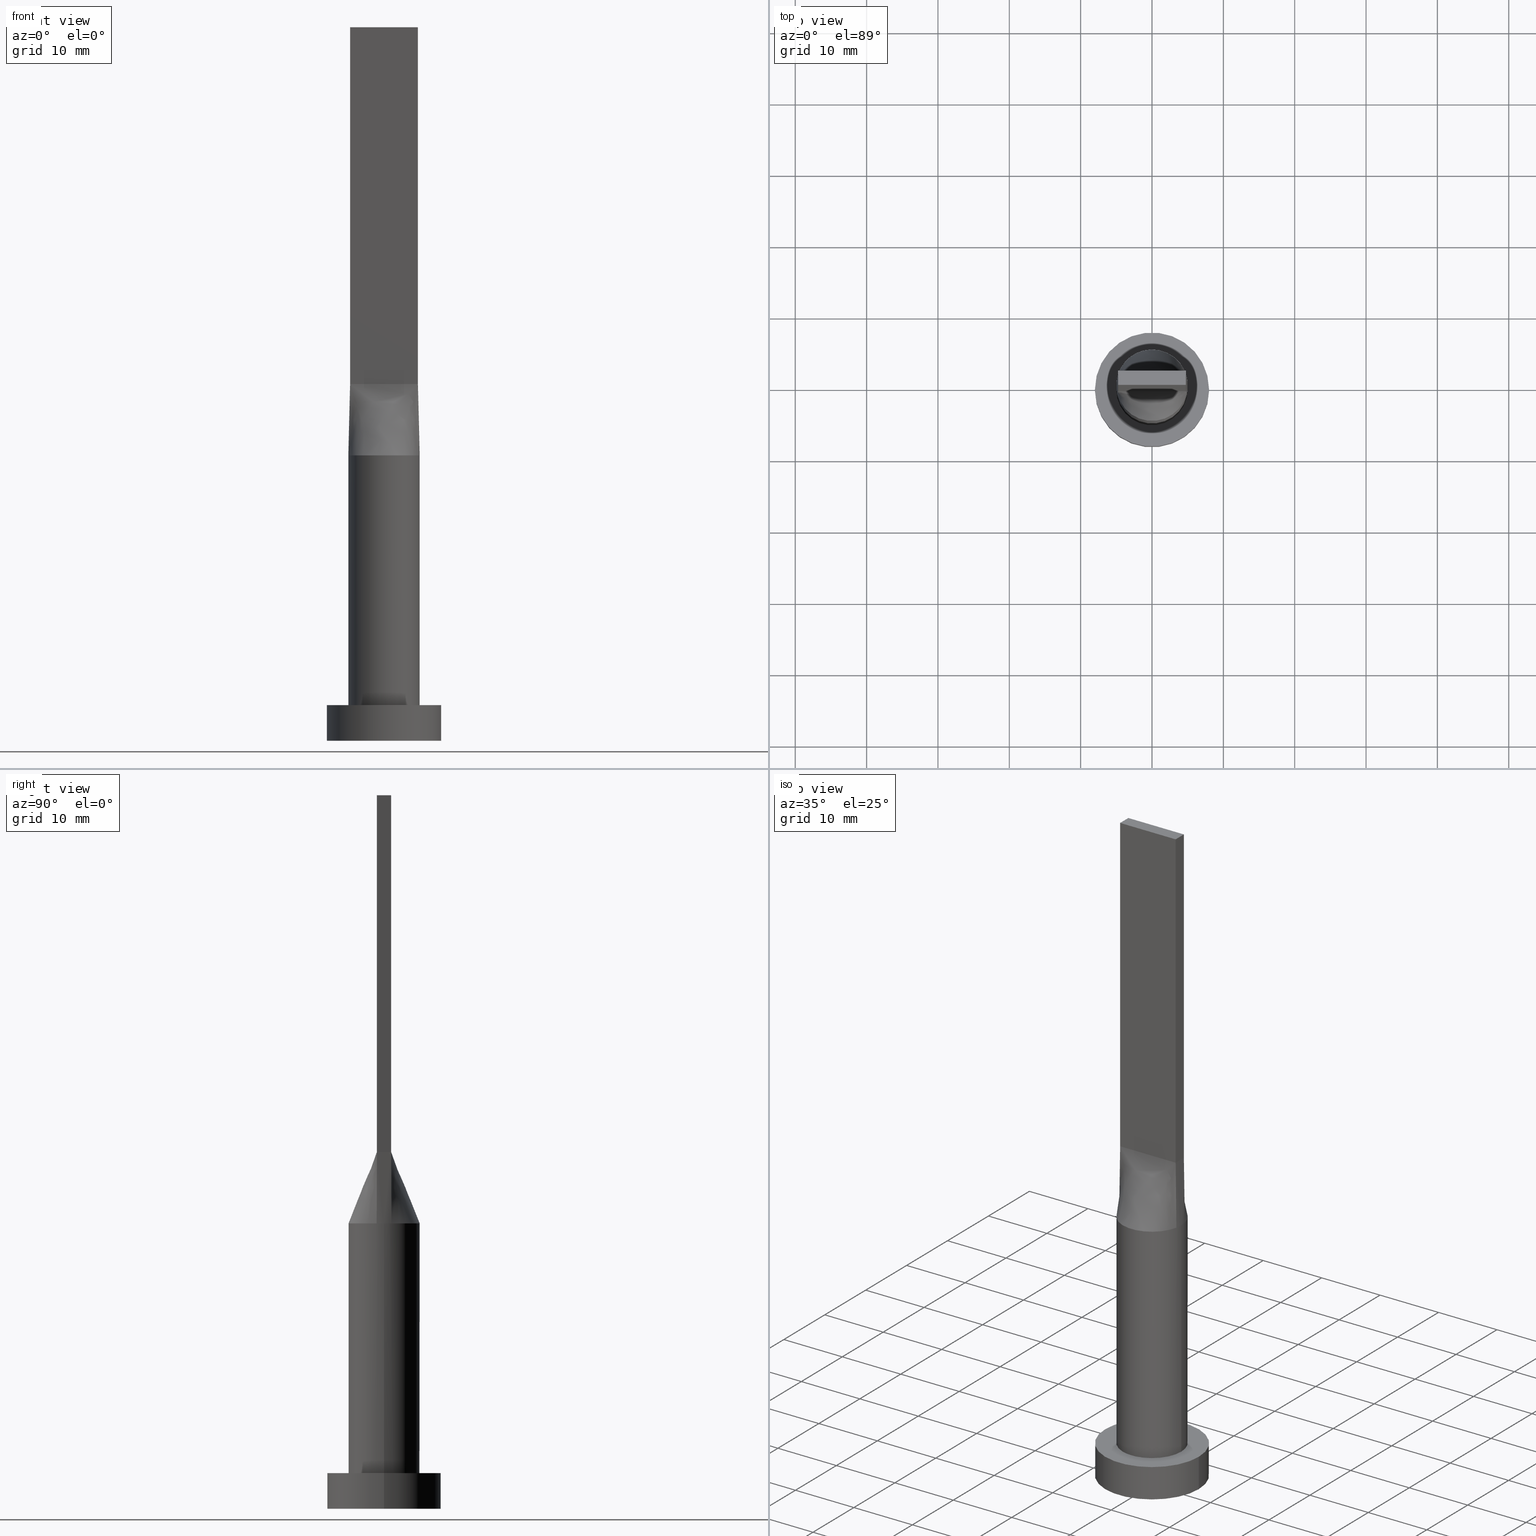
[diagram: canonical four-view strip — front | top / right | iso, engineering-drawing reading convention]
A machine part, canonical four-view strip (front | top / right | iso — engineering-drawing reading convention). The complete STEP part file that produces these views, byte-faithful:
ISO-10303-21;
HEADER;
FILE_DESCRIPTION (( 'STEP AP203' ),
    '1' );
FILE_NAME ('58a7.STEP',
    '2023-02-13T09:34:15',
    ( '' ),
    ( '' ),
    'SwSTEP 2.0',
    'SolidWorks 2019',
    '' );
FILE_SCHEMA (( 'CONFIG_CONTROL_DESIGN' ));
ENDSEC;

DATA;
#1 = CARTESIAN_POINT ( 'NONE',  ( -5.000000000000000888, -2.735102206719564433E-16, 40.00000000000000711 ) ) ;
#2 = CARTESIAN_POINT ( 'NONE',  ( 8.000000000000000000, 9.797174393178825657E-16, 5.000000000000000000 ) ) ;
#3 = CARTESIAN_POINT ( 'NONE',  ( 0.000000000000000000, 0.000000000000000000, 0.000000000000000000 ) ) ;
#4 = CARTESIAN_POINT ( 'NONE',  ( -0.7916666666666558605, -0.9999999999999991118, 50.00000000000000000 ) ) ;
#5 = EDGE_CURVE ( 'NONE', #92, #263, #191, .T. ) ;
#6 = CARTESIAN_POINT ( 'NONE',  ( -4.892748924933745691, 1.030052405249209269, 40.00000000000000000 ) ) ;
#7 = PERSON_AND_ORGANIZATION ( #209, #543 ) ;
#8 = CARTESIAN_POINT ( 'NONE',  ( 4.892748924933744803, -1.030052405249212155, 40.00000000000000000 ) ) ;
#9 = ORIENTED_EDGE ( 'NONE', *, *, #507, .T. ) ;
#10 = CARTESIAN_POINT ( 'NONE',  ( 4.214142381859630859, 2.735777372109855943, 40.00000000000000000 ) ) ;
#11 = ORIENTED_EDGE ( 'NONE', *, *, #529, .T. ) ;
#12 = CARTESIAN_POINT ( 'NONE',  ( -4.214142381859630859, 2.735777372109856387, 40.00000000000000000 ) ) ;
#13 = CARTESIAN_POINT ( 'NONE',  ( 0.9895833333333431403, -0.9999999999999995559, 50.00000000000000711 ) ) ;
#14 = PERSON_AND_ORGANIZATION ( #209, #543 ) ;
#15 = DIRECTION ( 'NONE',  ( 0.000000000000000000, -1.000000000000000000, 0.000000000000000000 ) ) ;
#16 = DIRECTION ( 'NONE',  ( 0.000000000000000000, 0.000000000000000000, 1.000000000000000000 ) ) ;
#17 = ORIENTED_EDGE ( 'NONE', *, *, #210, .F. ) ;
#18 = APPROVAL_ROLE ( '' ) ;
#19 = VECTOR ( 'NONE', #363, 1000.000000000000000 ) ;
#20 = CARTESIAN_POINT ( 'NONE',  ( -4.750000000000000000, 1.000000000000000000, 50.00000000000000000 ) ) ;
#21 = ORIENTED_EDGE ( 'NONE', *, *, #260, .F. ) ;
#22 = ORIENTED_EDGE ( 'NONE', *, *, #176, .F. ) ;
#23 = ORIENTED_EDGE ( 'NONE', *, *, #450, .T. ) ;
#24 = VECTOR ( 'NONE', #83, 1000.000000000000000 ) ;
#25 = CC_DESIGN_APPROVAL ( #347, ( #254 ) ) ;
#26 = VERTEX_POINT ( 'NONE', #459 ) ;
#27 = CC_DESIGN_DATE_AND_TIME_ASSIGNMENT ( #192, #535, ( #571 ) ) ;
#28 = DIRECTION ( 'NONE',  ( 1.000000000000000000, 0.000000000000000000, 0.000000000000000000 ) ) ;
#29 = CARTESIAN_POINT ( 'NONE',  ( 3.958333333333332149, 1.000000000000000000, 50.00000000000000711 ) ) ;
#30 = AXIS2_PLACEMENT_3D ( 'NONE', #352, #540, #230 ) ;
#31 = APPLICATION_CONTEXT ( 'configuration controlled 3d designs of mechanical parts and assemblies' ) ;
#32 = EDGE_CURVE ( 'NONE', #26, #68, #359, .T. ) ;
#33 = CARTESIAN_POINT ( 'NONE',  ( 4.750000000000000000, -0.9999999999999997780, 100.0000000000000000 ) ) ;
#34 = CARTESIAN_POINT ( 'NONE',  ( 0.000000000000000000, 0.000000000000000000, 5.000000000000000000 ) ) ;
#35 = LINE ( 'NONE', #219, #55 ) ;
#36 = ADVANCED_BREP_SHAPE_REPRESENTATION ( '58a7', ( #74, #443 ), #357 ) ;
#37 = DATE_AND_TIME ( #134, #43 ) ;
#38 = CARTESIAN_POINT ( 'NONE',  ( -4.214142381859630859, 2.735777372109856387, 40.00000000000000000 ) ) ;
#39 = CARTESIAN_POINT ( 'NONE',  ( -2.770833333333325488, -0.9999999999999991118, 50.00000000000000000 ) ) ;
#40 = DIRECTION ( 'NONE',  ( 0.000000000000000000, 0.000000000000000000, 1.000000000000000000 ) ) ;
#41 = LINE ( 'NONE', #327, #19 ) ;
#42 = AXIS2_PLACEMENT_3D ( 'NONE', #114, #334, #288 ) ;
#43 = LOCAL_TIME ( 10, 34, 15.00000000000000000, #416 ) ;
#44 = DIRECTION ( 'NONE',  ( 0.000000000000000000, 0.000000000000000000, 1.000000000000000000 ) ) ;
#45 = ORIENTED_EDGE ( 'NONE', *, *, #82, .T. ) ;
#46 = EDGE_CURVE ( 'NONE', #26, #179, #275, .T. ) ;
#47 = DIRECTION ( 'NONE',  ( 0.000000000000000000, 0.000000000000000000, 1.000000000000000000 ) ) ;
#48 = CARTESIAN_POINT ( 'NONE',  ( 4.750000000000000000, -0.6666666666666664076, 50.00000000000000000 ) ) ;
#49 = ORIENTED_EDGE ( 'NONE', *, *, #90, .T. ) ;
#50 = CARTESIAN_POINT ( 'NONE',  ( -4.892747712986291297, 1.030052143680498133, 40.00000000000000000 ) ) ;
#51 = CARTESIAN_POINT ( 'NONE',  ( -4.963482788771056420, 0.6940665520219767570, 39.99999999999999289 ) ) ;
#52 = CARTESIAN_POINT ( 'NONE',  ( -2.546422404201597711, 4.351724242187074765, 40.00000000000002132 ) ) ;
#53 = CARTESIAN_POINT ( 'NONE',  ( -3.166666666666660301, -0.9999999999999991118, 50.00000000000000711 ) ) ;
#54 = ORIENTED_EDGE ( 'NONE', *, *, #82, .F. ) ;
#55 = VECTOR ( 'NONE', #546, 1000.000000000000227 ) ;
#56 = PLANE ( 'NONE',  #131 ) ;
#57 = CARTESIAN_POINT ( 'NONE',  ( -3.900093280396789819, 3.182195704254724422, 40.00000000000000711 ) ) ;
#58 = APPROVAL_STATUS ( 'not_yet_approved' ) ;
#59 = LINE ( 'NONE', #482, #440 ) ;
#60 = EDGE_LOOP ( 'NONE', ( #150, #430, #66, #21 ) ) ;
#61 = CARTESIAN_POINT ( 'NONE',  ( -4.892752739180945554, -1.030053203145257168, 40.00000000000000000 ) ) ;
#62 = CARTESIAN_POINT ( 'NONE',  ( 3.958333333333337922, -0.9999999999999995559, 50.00000000000001421 ) ) ;
#63 = AXIS2_PLACEMENT_3D ( 'NONE', #525, #149, #242 ) ;
#64 = VERTEX_POINT ( 'NONE', #170 ) ;
#65 = EDGE_CURVE ( 'NONE', #201, #563, #455, .T. ) ;
#66 = ORIENTED_EDGE ( 'NONE', *, *, #65, .F. ) ;
#67 = CARTESIAN_POINT ( 'NONE',  ( 1.649264041307592965, -4.731318088779740805, 40.00000000000001421 ) ) ;
#68 = VERTEX_POINT ( 'NONE', #457 ) ;
#69 = DIRECTION ( 'NONE',  ( -1.000000000000000000, 6.847592668329501559E-17, 0.000000000000000000 ) ) ;
#70 = EDGE_LOOP ( 'NONE', ( #481, #116, #121, #204, #247 ) ) ;
#71 = CIRCLE ( 'NONE', #63, 5.000000000000000000 ) ;
#72 = ADVANCED_FACE ( 'NONE', ( #132 ), #269, .T. ) ;
#73 = LOCAL_TIME ( 10, 34, 15.00000000000000000, #386 ) ;
#74 = MANIFOLD_SOLID_BREP ( 'P�idat vysunut�m5', #180 ) ;
#75 = CARTESIAN_POINT ( 'NONE',  ( 3.900093280396791151, 3.182195704254724422, 40.00000000000000711 ) ) ;
#76 = LINE ( 'NONE', #215, #118 ) ;
#77 = DIRECTION ( 'NONE',  ( -0.000000000000000000, -0.000000000000000000, -1.000000000000000000 ) ) ;
#78 = VERTEX_POINT ( 'NONE', #181 ) ;
#79 = B_SPLINE_SURFACE_WITH_KNOTS ( 'NONE', 3, 1, ( 
 ( #8, #182 ),
 ( #471, #48 ),
 ( #189, #373 ),
 ( #228, #562 ),
 ( #412, #141 ),
 ( #417, #333 ) ),
 .UNSPECIFIED., .F., .F., .F.,
 ( 4, 2, 4 ),
 ( 2, 2 ),
 ( 0.000000000000000000, 0.5000000000000000000, 1.000000000000000000 ),
 ( 0.000000000000000000, 1.000000000000000000 ),
 .UNSPECIFIED. ) ;
#80 = VERTEX_POINT ( 'NONE', #1 ) ;
#81 = DIRECTION ( 'NONE',  ( 0.000000000000000000, 0.000000000000000000, 1.000000000000000000 ) ) ;
#82 = EDGE_CURVE ( 'NONE', #68, #196, #411, .T. ) ;
#83 = DIRECTION ( 'NONE',  ( -1.000000000000000000, -0.000000000000000000, -0.000000000000000000 ) ) ;
#84 = AXIS2_PLACEMENT_3D ( 'NONE', #318, #218, #28 ) ;
#85 = DIRECTION ( 'NONE',  ( -0.000000000000000000, -0.000000000000000000, -1.000000000000000000 ) ) ;
#86 = CARTESIAN_POINT ( 'NONE',  ( 0.000000000000000000, 0.000000000000000000, 40.00000000000000000 ) ) ;
#87 = CARTESIAN_POINT ( 'NONE',  ( -4.750000000000000000, 1.000000000000000000, 50.00000000000000000 ) ) ;
#88 = CARTESIAN_POINT ( 'NONE',  ( -8.000000000000000000, 0.000000000000000000, 5.000000000000000000 ) ) ;
#89 = CARTESIAN_POINT ( 'NONE',  ( 1.331739278681919991, 4.830988864699814478, 40.00000000000000000 ) ) ;
#90 = EDGE_CURVE ( 'NONE', #563, #446, #99, .T. ) ;
#91 = CARTESIAN_POINT ( 'NONE',  ( -1.331739278681922656, -4.830988864699811813, 39.99999999999999289 ) ) ;
#92 = VERTEX_POINT ( 'NONE', #88 ) ;
#93 = AXIS2_PLACEMENT_3D ( 'NONE', #184, #326, #372 ) ;
#94 = APPROVAL_PERSON_ORGANIZATION ( #437, #503, #18 ) ;
#95 = SECURITY_CLASSIFICATION_LEVEL ( 'unclassified' ) ;
#96 = CARTESIAN_POINT ( 'NONE',  ( 0.3380808736611315979, 4.999999999999999112, 40.00000000000000000 ) ) ;
#97 = MECHANICAL_CONTEXT ( 'NONE', #31, 'mechanical' ) ;
#98 = COORDINATED_UNIVERSAL_TIME_OFFSET ( 1, 0, .AHEAD. ) ;
#99 = LINE ( 'NONE', #229, #395 ) ;
#100 = CARTESIAN_POINT ( 'NONE',  ( -4.750000000000000000, -0.9999999999999991118, 50.00000000000000000 ) ) ;
#101 = ORIENTED_EDGE ( 'NONE', *, *, #223, .T. ) ;
#102 = ADVANCED_FACE ( 'NONE', ( #368 ), #188, .T. ) ;
#103 = CARTESIAN_POINT ( 'NONE',  ( -5.000000000000000000, -0.3470731991229979996, 40.00000000000000000 ) ) ;
#104 = CARTESIAN_POINT ( 'NONE',  ( -1.979166666666670737, 1.000000000000000000, 50.00000000000001421 ) ) ;
#105 = AXIS2_PLACEMENT_3D ( 'NONE', #34, #221, #594 ) ;
#106 = DIRECTION ( 'NONE',  ( 0.000000000000000000, 0.000000000000000000, 1.000000000000000000 ) ) ;
#107 = FACE_OUTER_BOUND ( 'NONE', #164, .T. ) ;
#108 = DIRECTION ( 'NONE',  ( 0.01427337385845012935, -0.003004920812305249440, 0.9998936149659165551 ) ) ;
#109 = ORIENTED_EDGE ( 'NONE', *, *, #544, .F. ) ;
#110 = DIRECTION ( 'NONE',  ( 6.847592668329501559E-17, 1.000000000000000000, -0.000000000000000000 ) ) ;
#111 = CARTESIAN_POINT ( 'NONE',  ( -4.750000000000000000, -0.3333333333333323711, 50.00000000000000000 ) ) ;
#112 = ORIENTED_EDGE ( 'NONE', *, *, #507, .F. ) ;
#113 = CARTESIAN_POINT ( 'NONE',  ( 4.750000000000000000, 1.000000000000000000, 50.00000000000000000 ) ) ;
#114 = CARTESIAN_POINT ( 'NONE',  ( 0.000000000000000000, 0.000000000000000000, 40.00000000000000000 ) ) ;
#115 = CARTESIAN_POINT ( 'NONE',  ( -4.750000000000000000, -0.9999999999999991118, 100.0000000000000000 ) ) ;
#116 = ORIENTED_EDGE ( 'NONE', *, *, #390, .T. ) ;
#117 = EDGE_CURVE ( 'NONE', #446, #558, #513, .T. ) ;
#118 = VECTOR ( 'NONE', #262, 1000.000000000000000 ) ;
#119 = ORIENTED_EDGE ( 'NONE', *, *, #581, .T. ) ;
#120 = DIRECTION ( 'NONE',  ( -0.000000000000000000, -0.000000000000000000, -1.000000000000000000 ) ) ;
#121 = ORIENTED_EDGE ( 'NONE', *, *, #260, .T. ) ;
#122 = DIRECTION ( 'NONE',  ( 1.000000000000000000, 0.000000000000000000, -0.000000000000000000 ) ) ;
#123 = CIRCLE ( 'NONE', #166, 5.000000000000000000 ) ;
#124 = CC_DESIGN_APPROVAL ( #202, ( #330 ) ) ;
#125 = EDGE_LOOP ( 'NONE', ( #45, #259, #468, #308 ) ) ;
#126 = CARTESIAN_POINT ( 'NONE',  ( 4.750000000000000000, 1.000000000000000000, 50.00000000000000000 ) ) ;
#127 = PLANE ( 'NONE',  #348 ) ;
#128 = DIRECTION ( 'NONE',  ( 0.000000000000000000, 1.000000000000000000, 0.000000000000000000 ) ) ;
#129 = ADVANCED_FACE ( 'NONE', ( #462 ), #222, .T. ) ;
#130 = CALENDAR_DATE ( 2023, 13, 2 ) ;
#131 = AXIS2_PLACEMENT_3D ( 'NONE', #193, #375, #400 ) ;
#132 = FACE_OUTER_BOUND ( 'NONE', #60, .T. ) ;
#133 = CARTESIAN_POINT ( 'NONE',  ( 0.000000000000000000, 0.000000000000000000, 5.000000000000000000 ) ) ;
#134 = CALENDAR_DATE ( 2023, 13, 2 ) ;
#135 = EDGE_CURVE ( 'NONE', #325, #451, #264, .T. ) ;
#136 = CARTESIAN_POINT ( 'NONE',  ( 2.546422404201596823, 4.351724242187075653, 40.00000000000000711 ) ) ;
#137 = CARTESIAN_POINT ( 'NONE',  ( -1.649264041307596962, -4.731318088779738140, 40.00000000000001421 ) ) ;
#138 = DIRECTION ( 'NONE',  ( 0.000000000000000000, 0.000000000000000000, 1.000000000000000000 ) ) ;
#139 = CC_DESIGN_SECURITY_CLASSIFICATION ( #330, ( #254 ) ) ;
#140 = CARTESIAN_POINT ( 'NONE',  ( 0.000000000000000000, 0.000000000000000000, 40.00000000000000000 ) ) ;
#141 = CARTESIAN_POINT ( 'NONE',  ( 4.750000000000000000, 0.6666666666666668517, 50.00000000000000000 ) ) ;
#142 = ORIENTED_EDGE ( 'NONE', *, *, #90, .F. ) ;
#143 = EDGE_CURVE ( 'NONE', #64, #239, #409, .T. ) ;
#144 = CARTESIAN_POINT ( 'NONE',  ( -4.892748924933745691, -1.030052405249208158, 40.00000000000000000 ) ) ;
#145 = CARTESIAN_POINT ( 'NONE',  ( -4.808752461626937702, 1.429035605956548771, 39.99999999999999289 ) ) ;
#146 = CARTESIAN_POINT ( 'NONE',  ( -4.214142381859629971, -2.735777372109855499, 40.00000000000001421 ) ) ;
#147 = ORIENTED_EDGE ( 'NONE', *, *, #581, .F. ) ;
#148 = CALENDAR_DATE ( 2023, 13, 2 ) ;
#149 = DIRECTION ( 'NONE',  ( 0.000000000000000000, 0.000000000000000000, 1.000000000000000000 ) ) ;
#150 = ORIENTED_EDGE ( 'NONE', *, *, #169, .T. ) ;
#151 = VECTOR ( 'NONE', #444, 1000.000000000000000 ) ;
#152 = CARTESIAN_POINT ( 'NONE',  ( -4.750000000000000000, 1.000000000000000000, 100.0000000000000000 ) ) ;
#153 = PLANE ( 'NONE',  #312 ) ;
#154 = EDGE_LOOP ( 'NONE', ( #494, #101 ) ) ;
#155 =( LENGTH_UNIT ( ) NAMED_UNIT ( * ) SI_UNIT ( .MILLI., .METRE. ) );
#156 = LINE ( 'NONE', #113, #151 ) ;
#157 = CALENDAR_DATE ( 2023, 13, 2 ) ;
#158 = EDGE_CURVE ( 'NONE', #80, #558, #237, .T. ) ;
#159 = LINE ( 'NONE', #152, #266 ) ;
#160 = LINE ( 'NONE', #115, #465 ) ;
#161 = EDGE_LOOP ( 'NONE', ( #436, #358, #504, #490 ) ) ;
#162 =( NAMED_UNIT ( * ) PLANE_ANGLE_UNIT ( ) SI_UNIT ( $, .RADIAN. ) );
#163 = FACE_OUTER_BOUND ( 'NONE', #154, .T. ) ;
#164 = EDGE_LOOP ( 'NONE', ( #109, #190, #301, #449 ) ) ;
#165 = FACE_OUTER_BOUND ( 'NONE', #271, .T. ) ;
#166 = AXIS2_PLACEMENT_3D ( 'NONE', #133, #81, #321 ) ;
#167 = CARTESIAN_POINT ( 'NONE',  ( 1.331739278681917771, -4.830988864699812702, 39.99999999999998579 ) ) ;
#168 = ORIENTED_EDGE ( 'NONE', *, *, #390, .F. ) ;
#169 = EDGE_CURVE ( 'NONE', #286, #394, #255, .T. ) ;
#170 = CARTESIAN_POINT ( 'NONE',  ( -8.000000000000000000, 0.000000000000000000, 0.000000000000000000 ) ) ;
#171 = FACE_OUTER_BOUND ( 'NONE', #306, .T. ) ;
#172 = CARTESIAN_POINT ( 'NONE',  ( 0.6760916456145784625, 4.965368365385191218, 40.00000000000000000 ) ) ;
#173 = VECTOR ( 'NONE', #120, 1000.000000000000000 ) ;
#174 = CC_DESIGN_APPROVAL ( #503, ( #571 ) ) ;
#175 = CARTESIAN_POINT ( 'NONE',  ( -1.583333333333337700, 1.000000000000000000, 50.00000000000000711 ) ) ;
#176 = EDGE_CURVE ( 'NONE', #394, #80, #71, .T. ) ;
#177 = CARTESIAN_POINT ( 'NONE',  ( 4.750000000000000000, -0.9999999999999997780, 100.0000000000000000 ) ) ;
#178 = FACE_OUTER_BOUND ( 'NONE', #392, .T. ) ;
#179 = VERTEX_POINT ( 'NONE', #339 ) ;
#180 = CLOSED_SHELL ( 'NONE', ( #102, #486, #183, #287, #360, #217, #272, #248, #458, #72, #187, #296, #590, #398, #129 ) ) ;
#181 = CARTESIAN_POINT ( 'NONE',  ( -4.750000000000000000, -0.9999999999999991118, 100.0000000000000000 ) ) ;
#182 = CARTESIAN_POINT ( 'NONE',  ( 4.750000000000000000, -1.000000000000000000, 50.00000000000000000 ) ) ;
#183 = ADVANCED_FACE ( 'NONE', ( #107 ), #480, .T. ) ;
#184 = CARTESIAN_POINT ( 'NONE',  ( 0.000000000000000000, 0.000000000000000000, 40.00000000000000000 ) ) ;
#185 = CARTESIAN_POINT ( 'NONE',  ( -1.331739278681919991, 4.830988864699813590, 39.99999999999999289 ) ) ;
#186 = PERSON_AND_ORGANIZATION ( #209, #543 ) ;
#187 = ADVANCED_FACE ( 'NONE', ( #178 ), #127, .F. ) ;
#188 = CYLINDRICAL_SURFACE ( 'NONE', #93, 5.000000000000000000 ) ;
#189 = CARTESIAN_POINT ( 'NONE',  ( 5.000000000000000888, -0.3470731991230004421, 40.00000000000000711 ) ) ;
#190 = ORIENTED_EDGE ( 'NONE', *, *, #5, .F. ) ;
#191 = CIRCLE ( 'NONE', #84, 8.000000000000000000 ) ;
#192 = DATE_AND_TIME ( #423, #396 ) ;
#193 = CARTESIAN_POINT ( 'NONE',  ( 4.750000000000000000, -0.9999999999999997780, 100.0000000000000000 ) ) ;
#194 = DIRECTION ( 'NONE',  ( 1.000000000000000000, 0.000000000000000000, -0.000000000000000000 ) ) ;
#195 = CARTESIAN_POINT ( 'NONE',  ( -1.979166666666656749, -0.9999999999999991118, 50.00000000000000000 ) ) ;
#196 = VERTEX_POINT ( 'NONE', #597 ) ;
#197 = DIRECTION ( 'NONE',  ( 1.000000000000000000, 0.000000000000000000, 0.000000000000000000 ) ) ;
#198 = CARTESIAN_POINT ( 'NONE',  ( -3.067114325249248097, 3.991228734590924976, 40.00000000000000711 ) ) ;
#199 = CARTESIAN_POINT ( 'NONE',  ( 3.067114325249245876, -3.991228734590925864, 40.00000000000000711 ) ) ;
#200 = LINE ( 'NONE', #300, #477 ) ;
#201 = VERTEX_POINT ( 'NONE', #549 ) ;
#202 = APPROVAL ( #58, 'NEUR�EN�' ) ;
#203 = FACE_OUTER_BOUND ( 'NONE', #454, .T. ) ;
#204 = ORIENTED_EDGE ( 'NONE', *, *, #329, .F. ) ;
#205 = CARTESIAN_POINT ( 'NONE',  ( -4.821374462466872401, 1.015026202624604634, 45.00000000000000000 ) ) ;
#206 = LINE ( 'NONE', #388, #173 ) ;
#207 = ORIENTED_EDGE ( 'NONE', *, *, #537, .F. ) ;
#208 = PLANE ( 'NONE',  #371 ) ;
#209 = PERSON ( 'NEUR�EN�', 'NEUR�EN�', 'NEUR�EN�', ('NEUR�EN�'), ('NEUR�EN�'), ('NEUR�EN�') ) ;
#210 = EDGE_CURVE ( 'NONE', #547, #442, #123, .T. ) ;
#211 = ORIENTED_EDGE ( 'NONE', *, *, #544, .T. ) ;
#212 = CARTESIAN_POINT ( 'NONE',  ( 1.331739278681919991, 4.830988864699814478, 40.00000000000000000 ) ) ;
#213 = LINE ( 'NONE', #356, #253 ) ;
#214 = CARTESIAN_POINT ( 'NONE',  ( -0.3380808736611314869, 4.999999999999999112, 40.00000000000000000 ) ) ;
#215 = CARTESIAN_POINT ( 'NONE',  ( -5.000000000000000000, 0.000000000000000000, 40.00000000000000000 ) ) ;
#216 = COORDINATED_UNIVERSAL_TIME_OFFSET ( 1, 0, .AHEAD. ) ;
#217 = ADVANCED_FACE ( 'NONE', ( #171 ), #506, .T. ) ;
#218 = DIRECTION ( 'NONE',  ( 0.000000000000000000, 0.000000000000000000, 1.000000000000000000 ) ) ;
#219 = CARTESIAN_POINT ( 'NONE',  ( 4.821374462466871513, -1.015026202624605967, 45.00000000000000000 ) ) ;
#220 = CARTESIAN_POINT ( 'NONE',  ( -4.750000000000000000, 1.000000000000000000, 50.00000000000000000 ) ) ;
#221 = DIRECTION ( 'NONE',  ( -0.000000000000000000, -0.000000000000000000, -1.000000000000000000 ) ) ;
#222 = PLANE ( 'NONE',  #511 ) ;
#223 = EDGE_CURVE ( 'NONE', #263, #92, #426, .T. ) ;
#224 = CARTESIAN_POINT ( 'NONE',  ( -3.067114325249250317, -3.991228734590923199, 40.00000000000000711 ) ) ;
#225 = CARTESIAN_POINT ( 'NONE',  ( -4.750000000000000000, -0.9999999999999991118, 50.00000000000000000 ) ) ;
#226 = VECTOR ( 'NONE', #279, 1000.000000000000227 ) ;
#227 = CARTESIAN_POINT ( 'NONE',  ( 3.067114325249248097, 3.991228734590925864, 40.00000000000001421 ) ) ;
#228 = CARTESIAN_POINT ( 'NONE',  ( 5.000000000000000000, 0.3470731991229993874, 40.00000000000000000 ) ) ;
#229 = CARTESIAN_POINT ( 'NONE',  ( -4.750000000000000000, 1.000000000000000000, 50.00000000000000000 ) ) ;
#230 = DIRECTION ( 'NONE',  ( 1.000000000000000000, 0.000000000000000000, 0.000000000000000000 ) ) ;
#231 = EDGE_LOOP ( 'NONE', ( #49, #380, #299, #11 ) ) ;
#232 = DATE_AND_TIME ( #157, #478 ) ;
#233 = CARTESIAN_POINT ( 'NONE',  ( -3.067114325249248097, 3.991228734590924976, 40.00000000000000711 ) ) ;
#234 = EDGE_CURVE ( 'NONE', #446, #179, #41, .T. ) ;
#235 = DIRECTION ( 'NONE',  ( -0.000000000000000000, -0.000000000000000000, -1.000000000000000000 ) ) ;
#236 = CARTESIAN_POINT ( 'NONE',  ( -4.750000000000000000, 1.000000000000000000, 50.00000000000000000 ) ) ;
#237 = CIRCLE ( 'NONE', #572, 5.000000000000000000 ) ;
#238 = CARTESIAN_POINT ( 'NONE',  ( -4.354166666666665186, -0.9999999999999991118, 50.00000000000000711 ) ) ;
#239 = VERTEX_POINT ( 'NONE', #421 ) ;
#240 = VECTOR ( 'NONE', #461, 1000.000000000000227 ) ;
#241 = PERSON_AND_ORGANIZATION ( #209, #543 ) ;
#242 = DIRECTION ( 'NONE',  ( 1.000000000000000000, 0.000000000000000000, 0.000000000000000000 ) ) ;
#243 = CARTESIAN_POINT ( 'NONE',  ( 0.7916666666666767327, -0.9999999999999995559, 50.00000000000000000 ) ) ;
#244 = EDGE_LOOP ( 'NONE', ( #598, #17 ) ) ;
#245 = APPROVAL_STATUS ( 'not_yet_approved' ) ;
#246 = CARTESIAN_POINT ( 'NONE',  ( 0.3958333333333435289, -0.9999999999999993339, 50.00000000000000711 ) ) ;
#247 = ORIENTED_EDGE ( 'NONE', *, *, #450, .F. ) ;
#248 = ADVANCED_FACE ( 'NONE', ( #514 ), #79, .T. ) ;
#249 = APPLICATION_PROTOCOL_DEFINITION ( 'international standard', 'config_control_design', 1994, #453 ) ;
#250 = CARTESIAN_POINT ( 'NONE',  ( 1.583333333333342585, -0.9999999999999995559, 50.00000000000000711 ) ) ;
#251 = ORIENTED_EDGE ( 'NONE', *, *, #537, .T. ) ;
#252 = PRODUCT ( '58a7', '58a7', '', ( #97 ) ) ;
#253 = VECTOR ( 'NONE', #274, 1000.000000000000000 ) ;
#254 = PRODUCT_DEFINITION_FORMATION_WITH_SPECIFIED_SOURCE ( 'LIBOVOLN�', '', #252, .NOT_KNOWN. ) ;
#255 = B_SPLINE_CURVE_WITH_KNOTS ( 'NONE', 3,
 ( #557, #332, #565, #10, #323, #227, #136, #508, #89, #283, #96, #415, #289, #185, #474, #52, #198, #57, #12, #379, #568, #432 ),
 .UNSPECIFIED., .F., .F.,
 ( 4, 2, 2, 2, 2, 2, 2, 2, 2, 2, 4 ),
 ( 0.000000000000000000, 0.1250000000000000278, 0.2500000000000000000, 0.3749999999999999445, 0.4375000000000000000, 0.5000000000000000000, 0.5625000000000000000, 0.6250000000000000000, 0.7500000000000000000, 0.8750000000000001110, 1.000000000000000000 ),
 .UNSPECIFIED. ) ;
#256 = CARTESIAN_POINT ( 'NONE',  ( 4.354166666666669627, -0.9999999999999995559, 50.00000000000000711 ) ) ;
#257 =( NAMED_UNIT ( * ) SI_UNIT ( $, .STERADIAN. ) SOLID_ANGLE_UNIT ( ) );
#258 = PLANE ( 'NONE',  #402 ) ;
#259 = ORIENTED_EDGE ( 'NONE', *, *, #353, .T. ) ;
#260 = EDGE_CURVE ( 'NONE', #286, #201, #553, .T. ) ;
#261 = ORIENTED_EDGE ( 'NONE', *, *, #46, .F. ) ;
#262 = DIRECTION ( 'NONE',  ( -0.000000000000000000, -0.000000000000000000, -1.000000000000000000 ) ) ;
#263 = VERTEX_POINT ( 'NONE', #2 ) ;
#264 = CIRCLE ( 'NONE', #592, 5.000000000000000000 ) ;
#265 = CARTESIAN_POINT ( 'NONE',  ( -5.000000000000000000, 0.000000000000000000, 5.000000000000000000 ) ) ;
#266 = VECTOR ( 'NONE', #431, 1000.000000000000000 ) ;
#267 = CARTESIAN_POINT ( 'NONE',  ( 4.892748924933745691, 1.030052405249209269, 40.00000000000000000 ) ) ;
#268 = CARTESIAN_POINT ( 'NONE',  ( 4.750000000000000000, 1.000000000000000000, 100.0000000000000000 ) ) ;
#269 = B_SPLINE_SURFACE_WITH_KNOTS ( 'NONE', 3, 1, ( 
 ( #267, #126 ),
 ( #406, #541 ),
 ( #316, #29 ),
 ( #595, #505 ),
 ( #75, #548 ),
 ( #310, #278 ),
 ( #460, #497 ),
 ( #403, #273 ),
 ( #212, #593 ),
 ( #172, #397 ),
 ( #354, #588 ),
 ( #214, #502 ),
 ( #350, #401 ),
 ( #399, #589 ),
 ( #315, #499 ),
 ( #591, #175 ),
 ( #233, #104 ),
 ( #467, #554 ),
 ( #38, #420 ),
 ( #291, #336 ),
 ( #145, #518 ),
 ( #6, #236 ) ),
 .UNSPECIFIED., .F., .F., .F.,
 ( 4, 2, 2, 2, 2, 2, 2, 2, 2, 2, 4 ),
 ( 2, 2 ),
 ( 0.000000000000000000, 0.1250000000000000278, 0.2500000000000000000, 0.3749999999999999445, 0.4375000000000000000, 0.5000000000000000000, 0.5625000000000000000, 0.6250000000000000000, 0.7500000000000000000, 0.8750000000000001110, 1.000000000000000000 ),
 ( 0.000000000000000000, 1.000000000000000000 ),
 .UNSPECIFIED. ) ;
#270 = PERSON_AND_ORGANIZATION ( #209, #543 ) ;
#271 = EDGE_LOOP ( 'NONE', ( #476, #261, #587, #361 ) ) ;
#272 = ADVANCED_FACE ( 'NONE', ( #281 ), #389, .T. ) ;
#273 = CARTESIAN_POINT ( 'NONE',  ( 0.9895833333333288184, 1.000000000000000000, 50.00000000000000000 ) ) ;
#274 = DIRECTION ( 'NONE',  ( -0.000000000000000000, -0.000000000000000000, -1.000000000000000000 ) ) ;
#275 = LINE ( 'NONE', #33, #542 ) ;
#276 = FACE_OUTER_BOUND ( 'NONE', #527, .T. ) ;
#277 = EDGE_CURVE ( 'NONE', #78, #26, #160, .T. ) ;
#278 = CARTESIAN_POINT ( 'NONE',  ( 1.979166666666662966, 1.000000000000000000, 50.00000000000000711 ) ) ;
#279 = DIRECTION ( 'NONE',  ( -0.01427337385845012935, -0.003004920812305205639, -0.9998936149659165551 ) ) ;
#280 = PERSON_AND_ORGANIZATION ( #209, #543 ) ;
#281 = FACE_OUTER_BOUND ( 'NONE', #377, .T. ) ;
#282 = PRODUCT_DEFINITION_SHAPE ( 'NONE', 'NONE',  #571 ) ;
#283 = CARTESIAN_POINT ( 'NONE',  ( 0.6760916456145784625, 4.965368365385191218, 40.00000000000000000 ) ) ;
#284 = AXIS2_PLACEMENT_3D ( 'NONE', #387, #110, #69 ) ;
#285 = DIRECTION ( 'NONE',  ( -1.000000000000000000, 0.000000000000000000, 0.000000000000000000 ) ) ;
#286 = VERTEX_POINT ( 'NONE', #307 ) ;
#287 = ADVANCED_FACE ( 'NONE', ( #351, #163 ), #258, .T. ) ;
#288 = DIRECTION ( 'NONE',  ( 1.000000000000000000, 0.000000000000000000, 0.000000000000000000 ) ) ;
#289 = CARTESIAN_POINT ( 'NONE',  ( -0.6760916456145782405, 4.965368365385191218, 40.00000000000000000 ) ) ;
#290 = FACE_OUTER_BOUND ( 'NONE', #447, .T. ) ;
#291 = CARTESIAN_POINT ( 'NONE',  ( -4.667610010780610885, 1.859271532507960067, 40.00000000000000711 ) ) ;
#292 = AXIS2_PLACEMENT_3D ( 'NONE', #520, #335, #345 ) ;
#293 = CARTESIAN_POINT ( 'NONE',  ( -0.6760916456145810161, -4.965368365385190330, 40.00000000000000711 ) ) ;
#294 = EDGE_LOOP ( 'NONE', ( #168, #119, #538, #566, #22, #485 ) ) ;
#295 = APPROVAL_PERSON_ORGANIZATION ( #280, #347, #366 ) ;
#296 = ADVANCED_FACE ( 'NONE', ( #311 ), #208, .F. ) ;
#297 = CARTESIAN_POINT ( 'NONE',  ( 8.000000000000000000, 9.797174393178825657E-16, 5.000000000000000000 ) ) ;
#298 = CARTESIAN_POINT ( 'NONE',  ( -0.3958333333333227677, -0.9999999999999991118, 50.00000000000000000 ) ) ;
#299 = ORIENTED_EDGE ( 'NONE', *, *, #353, .F. ) ;
#300 = CARTESIAN_POINT ( 'NONE',  ( 4.750000000000000000, 1.000000000000000000, 100.0000000000000000 ) ) ;
#301 = ORIENTED_EDGE ( 'NONE', *, *, #445, .T. ) ;
#302 = LINE ( 'NONE', #205, #328 ) ;
#303 = DIRECTION ( 'NONE',  ( 1.000000000000000000, -6.847592668329501559E-17, 0.000000000000000000 ) ) ;
#304 = DIRECTION ( 'NONE',  ( 0.000000000000000000, 0.000000000000000000, 1.000000000000000000 ) ) ;
#305 = EDGE_CURVE ( 'NONE', #80, #442, #76, .T. ) ;
#306 = EDGE_LOOP ( 'NONE', ( #147, #422, #112, #515, #570, #534 ) ) ;
#307 = CARTESIAN_POINT ( 'NONE',  ( 4.892748924933744803, 1.030052405249211045, 40.00000000000000000 ) ) ;
#308 = ORIENTED_EDGE ( 'NONE', *, *, #32, .T. ) ;
#309 = DATE_TIME_ROLE ( 'classification_date' ) ;
#310 = CARTESIAN_POINT ( 'NONE',  ( 3.067114325249248097, 3.991228734590925864, 40.00000000000001421 ) ) ;
#311 = FACE_OUTER_BOUND ( 'NONE', #231, .T. ) ;
#312 = AXIS2_PLACEMENT_3D ( 'NONE', #346, #382, #574 ) ;
#313 = CC_DESIGN_PERSON_AND_ORGANIZATION_ASSIGNMENT ( #241, #600, ( #330 ) ) ;
#314 = CARTESIAN_POINT ( 'NONE',  ( 0.000000000000000000, 0.000000000000000000, 0.000000000000000000 ) ) ;
#315 = CARTESIAN_POINT ( 'NONE',  ( -1.649264041307594963, 4.731318088779739917, 40.00000000000000000 ) ) ;
#316 = CARTESIAN_POINT ( 'NONE',  ( 4.667610010780610885, 1.859271532507960289, 40.00000000000001421 ) ) ;
#317 = DIRECTION ( 'NONE',  ( 0.000000000000000000, -0.000000000000000000, -1.000000000000000000 ) ) ;
#318 = CARTESIAN_POINT ( 'NONE',  ( 0.000000000000000000, 0.000000000000000000, 5.000000000000000000 ) ) ;
#319 = CC_DESIGN_PERSON_AND_ORGANIZATION_ASSIGNMENT ( #14, #501, ( #254 ) ) ;
#320 = CIRCLE ( 'NONE', #42, 5.000000000000000000 ) ;
#321 = DIRECTION ( 'NONE',  ( 1.000000000000000000, 0.000000000000000000, 0.000000000000000000 ) ) ;
#322 = PERSON_AND_ORGANIZATION_ROLE ( 'design_supplier' ) ;
#323 = CARTESIAN_POINT ( 'NONE',  ( 3.900093280396791151, 3.182195704254724422, 40.00000000000000711 ) ) ;
#324 = CARTESIAN_POINT ( 'NONE',  ( 4.821374462466871513, 1.015026202624605522, 45.00000000000000000 ) ) ;
#325 = VERTEX_POINT ( 'NONE', #577 ) ;
#326 = DIRECTION ( 'NONE',  ( -0.000000000000000000, -0.000000000000000000, -1.000000000000000000 ) ) ;
#327 = CARTESIAN_POINT ( 'NONE',  ( -4.750000000000000000, -0.9999999999999991118, 50.00000000000000000 ) ) ;
#328 = VECTOR ( 'NONE', #108, 1000.000000000000227 ) ;
#329 = EDGE_CURVE ( 'NONE', #179, #201, #156, .T. ) ;
#330 = SECURITY_CLASSIFICATION ( '', '', #95 ) ;
#331 = COORDINATED_UNIVERSAL_TIME_OFFSET ( 1, 0, .AHEAD. ) ;
#332 = CARTESIAN_POINT ( 'NONE',  ( 4.808752461626938590, 1.429035605956548549, 39.99999999999999289 ) ) ;
#333 = CARTESIAN_POINT ( 'NONE',  ( 4.750000000000000000, 1.000000000000000000, 50.00000000000000000 ) ) ;
#334 = DIRECTION ( 'NONE',  ( 0.000000000000000000, 0.000000000000000000, 1.000000000000000000 ) ) ;
#335 = DIRECTION ( 'NONE',  ( -0.000000000000000000, -0.000000000000000000, -1.000000000000000000 ) ) ;
#336 = CARTESIAN_POINT ( 'NONE',  ( -3.958333333333335258, 1.000000000000000000, 50.00000000000001421 ) ) ;
#337 = CARTESIAN_POINT ( 'NONE',  ( -4.808752461626938590, -1.429035605956546329, 40.00000000000000000 ) ) ;
#338 = EDGE_CURVE ( 'NONE', #394, #563, #302, .T. ) ;
#339 = CARTESIAN_POINT ( 'NONE',  ( 4.750000000000000000, -0.9999999999999997780, 50.00000000000000000 ) ) ;
#340 = VECTOR ( 'NONE', #128, 1000.000000000000000 ) ;
#341 = CARTESIAN_POINT ( 'NONE',  ( 4.214142381859629971, -2.735777372109856831, 40.00000000000000000 ) ) ;
#342 = APPROVAL_PERSON_ORGANIZATION ( #456, #202, #578 ) ;
#343 = DATE_AND_TIME ( #148, #73 ) ;
#344 = CARTESIAN_POINT ( 'NONE',  ( 0.000000000000000000, 0.000000000000000000, 40.00000000000000000 ) ) ;
#345 = DIRECTION ( 'NONE',  ( -1.000000000000000000, 0.000000000000000000, 0.000000000000000000 ) ) ;
#346 = CARTESIAN_POINT ( 'NONE',  ( 0.000000000000000000, 0.000000000000000000, 0.000000000000000000 ) ) ;
#347 = APPROVAL ( #500, 'NEUR�EN�' ) ;
#348 = AXIS2_PLACEMENT_3D ( 'NONE', #268, #407, #317 ) ;
#349 = ORIENTED_EDGE ( 'NONE', *, *, #529, .F. ) ;
#350 = CARTESIAN_POINT ( 'NONE',  ( -0.6760916456145782405, 4.965368365385191218, 40.00000000000000000 ) ) ;
#351 = FACE_BOUND ( 'NONE', #244, .T. ) ;
#352 = CARTESIAN_POINT ( 'NONE',  ( 0.000000000000000000, 0.000000000000000000, 5.000000000000000000 ) ) ;
#353 = EDGE_CURVE ( 'NONE', #196, #78, #59, .T. ) ;
#354 = CARTESIAN_POINT ( 'NONE',  ( 0.3380808736611315979, 4.999999999999999112, 40.00000000000000000 ) ) ;
#355 = VECTOR ( 'NONE', #285, 1000.000000000000000 ) ;
#356 = CARTESIAN_POINT ( 'NONE',  ( -8.000000000000000000, 0.000000000000000000, 5.000000000000000000 ) ) ;
#357 =( GEOMETRIC_REPRESENTATION_CONTEXT ( 3 ) GLOBAL_UNCERTAINTY_ASSIGNED_CONTEXT ( ( #551 ) ) GLOBAL_UNIT_ASSIGNED_CONTEXT ( ( #155, #162, #257 ) ) REPRESENTATION_CONTEXT ( 'NONE', 'WORKASPACE' ) );
#358 = ORIENTED_EDGE ( 'NONE', *, *, #463, .F. ) ;
#359 = LINE ( 'NONE', #177, #340 ) ;
#360 = ADVANCED_FACE ( 'NONE', ( #203 ), #153, .F. ) ;
#361 = ORIENTED_EDGE ( 'NONE', *, *, #425, .T. ) ;
#362 = CARTESIAN_POINT ( 'NONE',  ( 4.750000000000000000, 1.000000000000000000, 100.0000000000000000 ) ) ;
#363 = DIRECTION ( 'NONE',  ( 1.000000000000000000, -6.847592668329501559E-17, 0.000000000000000000 ) ) ;
#364 = APPROVAL_DATE_TIME ( #37, #347 ) ;
#365 = DIRECTION ( 'NONE',  ( 1.000000000000000000, -9.769962616701377556E-15, 0.000000000000000000 ) ) ;
#366 = APPROVAL_ROLE ( '' ) ;
#367 = EDGE_CURVE ( 'NONE', #442, #547, #585, .T. ) ;
#368 = FACE_OUTER_BOUND ( 'NONE', #294, .T. ) ;
#369 = ORIENTED_EDGE ( 'NONE', *, *, #117, .T. ) ;
#370 = DESIGN_CONTEXT ( 'detailed design', #453, 'design' ) ;
#371 = AXIS2_PLACEMENT_3D ( 'NONE', #498, #492, #487 ) ;
#372 = DIRECTION ( 'NONE',  ( -1.000000000000000000, 0.000000000000000000, 0.000000000000000000 ) ) ;
#373 = CARTESIAN_POINT ( 'NONE',  ( 4.750000000000000000, -0.3333333333333329818, 50.00000000000000000 ) ) ;
#374 = ORIENTED_EDGE ( 'NONE', *, *, #176, .T. ) ;
#375 = DIRECTION ( 'NONE',  ( -1.000000000000000000, 0.000000000000000000, 0.000000000000000000 ) ) ;
#376 = CARTESIAN_POINT ( 'NONE',  ( -2.546422404201599488, -4.351724242187074765, 40.00000000000002132 ) ) ;
#377 = EDGE_LOOP ( 'NONE', ( #9, #23, #491, #369 ) ) ;
#378 = DIRECTION ( 'NONE',  ( -0.000000000000000000, -0.000000000000000000, -1.000000000000000000 ) ) ;
#379 = CARTESIAN_POINT ( 'NONE',  ( -4.667610010780610885, 1.859271532507960067, 40.00000000000000711 ) ) ;
#380 = ORIENTED_EDGE ( 'NONE', *, *, #425, .F. ) ;
#381 = CYLINDRICAL_SURFACE ( 'NONE', #292, 8.000000000000000000 ) ;
#382 = DIRECTION ( 'NONE',  ( 0.000000000000000000, 0.000000000000000000, 1.000000000000000000 ) ) ;
#383 = DIRECTION ( 'NONE',  ( 1.000000000000000000, 0.000000000000000000, 0.000000000000000000 ) ) ;
#384 = CARTESIAN_POINT ( 'NONE',  ( 0.3380808736611294329, -5.000000000000000000, 39.99999999999999289 ) ) ;
#385 = LOCAL_TIME ( 10, 34, 15.00000000000000000, #216 ) ;
#386 = COORDINATED_UNIVERSAL_TIME_OFFSET ( 1, 0, .AHEAD. ) ;
#387 = CARTESIAN_POINT ( 'NONE',  ( -4.750000000000000000, -0.9999999999999991118, 100.0000000000000000 ) ) ;
#388 = CARTESIAN_POINT ( 'NONE',  ( -4.750000000000000000, -0.9999999999999991118, 100.0000000000000000 ) ) ;
#389 = B_SPLINE_SURFACE_WITH_KNOTS ( 'NONE', 3, 1, ( 
 ( #555, #100 ),
 ( #337, #238 ),
 ( #519, #475 ),
 ( #146, #53 ),
 ( #429, #39 ),
 ( #224, #195 ),
 ( #376, #464 ),
 ( #137, #509 ),
 ( #91, #4 ),
 ( #293, #298 ),
 ( #489, #536 ),
 ( #384, #393 ),
 ( #586, #246 ),
 ( #167, #243 ),
 ( #67, #13 ),
 ( #448, #250 ),
 ( #199, #569 ),
 ( #435, #391 ),
 ( #341, #526 ),
 ( #484, #62 ),
 ( #441, #256 ),
 ( #533, #580 ) ),
 .UNSPECIFIED., .F., .F., .F.,
 ( 4, 2, 2, 2, 2, 2, 2, 2, 2, 2, 4 ),
 ( 2, 2 ),
 ( 0.000000000000000000, 0.1250000000000000278, 0.2500000000000000555, 0.3750000000000001110, 0.4375000000000000555, 0.5000000000000000000, 0.5625000000000000000, 0.6250000000000000000, 0.7500000000000000000, 0.8750000000000001110, 1.000000000000000000 ),
 ( 0.000000000000000000, 1.000000000000000000 ),
 .UNSPECIFIED. ) ;
#390 = EDGE_CURVE ( 'NONE', #451, #286, #320, .T. ) ;
#391 = CARTESIAN_POINT ( 'NONE',  ( 2.770833333333341475, -0.9999999999999995559, 50.00000000000001421 ) ) ;
#392 = EDGE_LOOP ( 'NONE', ( #556, #349, #54, #545 ) ) ;
#393 = CARTESIAN_POINT ( 'NONE',  ( 0.1979166666666768715, -0.9999999999999993339, 50.00000000000000711 ) ) ;
#394 = VERTEX_POINT ( 'NONE', #50 ) ;
#395 = VECTOR ( 'NONE', #428, 1000.000000000000000 ) ;
#396 = LOCAL_TIME ( 10, 34, 15.00000000000000000, #98 ) ;
#397 = CARTESIAN_POINT ( 'NONE',  ( 0.3958333333333280968, 1.000000000000000000, 50.00000000000000000 ) ) ;
#398 = ADVANCED_FACE ( 'NONE', ( #424 ), #56, .F. ) ;
#399 = CARTESIAN_POINT ( 'NONE',  ( -1.331739278681919991, 4.830988864699813590, 39.99999999999999289 ) ) ;
#400 = DIRECTION ( 'NONE',  ( 0.000000000000000000, 0.000000000000000000, 1.000000000000000000 ) ) ;
#401 = CARTESIAN_POINT ( 'NONE',  ( -0.3958333333333385329, 1.000000000000000000, 50.00000000000000000 ) ) ;
#402 = AXIS2_PLACEMENT_3D ( 'NONE', #495, #304, #122 ) ;
#403 = CARTESIAN_POINT ( 'NONE',  ( 1.649264041307594297, 4.731318088779739917, 40.00000000000000000 ) ) ;
#404 = DATE_AND_TIME ( #130, #385 ) ;
#405 = CARTESIAN_POINT ( 'NONE',  ( 5.000000000000000888, 3.511115666546218713E-17, 40.00000000000000711 ) ) ;
#406 = CARTESIAN_POINT ( 'NONE',  ( 4.808752461626938590, 1.429035605956548549, 39.99999999999999289 ) ) ;
#407 = DIRECTION ( 'NONE',  ( 0.000000000000000000, -1.000000000000000000, 0.000000000000000000 ) ) ;
#408 = CARTESIAN_POINT ( 'NONE',  ( 0.000000000000000000, 0.000000000000000000, 100.0000000000000000 ) ) ;
#409 = CIRCLE ( 'NONE', #599, 8.000000000000000000 ) ;
#410 = CIRCLE ( 'NONE', #466, 8.000000000000000000 ) ;
#411 = LINE ( 'NONE', #362, #355 ) ;
#412 = CARTESIAN_POINT ( 'NONE',  ( 4.963482788771057308, 0.6940665520219779783, 40.00000000000000000 ) ) ;
#413 = CC_DESIGN_PERSON_AND_ORGANIZATION_ASSIGNMENT ( #270, #322, ( #254 ) ) ;
#414 = CARTESIAN_POINT ( 'NONE',  ( -4.892748924933745691, 1.030052405249209269, 40.00000000000000000 ) ) ;
#415 = CARTESIAN_POINT ( 'NONE',  ( -0.3380808736611314869, 4.999999999999999112, 40.00000000000000000 ) ) ;
#416 = COORDINATED_UNIVERSAL_TIME_OFFSET ( 1, 0, .AHEAD. ) ;
#417 = CARTESIAN_POINT ( 'NONE',  ( 4.892748924933744803, 1.030052405249211045, 40.00000000000000000 ) ) ;
#418 = ORIENTED_EDGE ( 'NONE', *, *, #445, .F. ) ;
#419 = APPROVAL_DATE_TIME ( #232, #503 ) ;
#420 = CARTESIAN_POINT ( 'NONE',  ( -3.166666666666670515, 1.000000000000000000, 50.00000000000001421 ) ) ;
#421 = CARTESIAN_POINT ( 'NONE',  ( 8.000000000000000000, 9.797174393178825657E-16, 0.000000000000000000 ) ) ;
#422 = ORIENTED_EDGE ( 'NONE', *, *, #135, .F. ) ;
#423 = CALENDAR_DATE ( 2023, 13, 2 ) ;
#424 = FACE_OUTER_BOUND ( 'NONE', #161, .T. ) ;
#425 = EDGE_CURVE ( 'NONE', #78, #446, #206, .T. ) ;
#426 = CIRCLE ( 'NONE', #30, 8.000000000000000000 ) ;
#427 = SHAPE_DEFINITION_REPRESENTATION ( #282, #36 ) ;
#428 = DIRECTION ( 'NONE',  ( 0.000000000000000000, -1.000000000000000000, 0.000000000000000000 ) ) ;
#429 = CARTESIAN_POINT ( 'NONE',  ( -3.900093280396790263, -3.182195704254722646, 40.00000000000000000 ) ) ;
#430 = ORIENTED_EDGE ( 'NONE', *, *, #338, .T. ) ;
#431 = DIRECTION ( 'NONE',  ( -0.000000000000000000, -0.000000000000000000, -1.000000000000000000 ) ) ;
#432 = CARTESIAN_POINT ( 'NONE',  ( -4.892747712986291297, 1.030052143680498133, 40.00000000000000000 ) ) ;
#433 = B_SPLINE_SURFACE_WITH_KNOTS ( 'NONE', 3, 1, ( 
 ( #414, #87 ),
 ( #51, #488 ),
 ( #564, #530 ),
 ( #103, #111 ),
 ( #439, #517 ),
 ( #144, #473 ) ),
 .UNSPECIFIED., .F., .F., .F.,
 ( 4, 2, 4 ),
 ( 2, 2 ),
 ( 0.000000000000000000, 0.5000000000000000000, 1.000000000000000000 ),
 ( 0.000000000000000000, 1.000000000000000000 ),
 .UNSPECIFIED. ) ;
#434 = PLANE ( 'NONE',  #284 ) ;
#435 = CARTESIAN_POINT ( 'NONE',  ( 3.900093280396789819, -3.182195704254725754, 39.99999999999999289 ) ) ;
#436 = ORIENTED_EDGE ( 'NONE', *, *, #329, .T. ) ;
#437 = PERSON_AND_ORGANIZATION ( #209, #543 ) ;
#438 = DIRECTION ( 'NONE',  ( 0.000000000000000000, 0.000000000000000000, 1.000000000000000000 ) ) ;
#439 = CARTESIAN_POINT ( 'NONE',  ( -4.963482788771057308, -0.6940665520219756468, 40.00000000000000000 ) ) ;
#440 = VECTOR ( 'NONE', #15, 1000.000000000000000 ) ;
#441 = CARTESIAN_POINT ( 'NONE',  ( 4.808752461626937702, -1.429035605956550103, 40.00000000000001421 ) ) ;
#442 = VERTEX_POINT ( 'NONE', #265 ) ;
#443 = AXIS2_PLACEMENT_3D ( 'NONE', #314, #16, #383 ) ;
#444 = DIRECTION ( 'NONE',  ( -0.000000000000000000, 1.000000000000000000, -0.000000000000000000 ) ) ;
#445 = EDGE_CURVE ( 'NONE', #92, #64, #213, .T. ) ;
#446 = VERTEX_POINT ( 'NONE', #225 ) ;
#447 = EDGE_LOOP ( 'NONE', ( #531, #211, #251, #418 ) ) ;
#448 = CARTESIAN_POINT ( 'NONE',  ( 2.546422404201595491, -4.351724242187078318, 40.00000000000000711 ) ) ;
#449 = ORIENTED_EDGE ( 'NONE', *, *, #143, .T. ) ;
#450 = EDGE_CURVE ( 'NONE', #325, #179, #35, .T. ) ;
#451 = VERTEX_POINT ( 'NONE', #405 ) ;
#452 = DIRECTION ( 'NONE',  ( -1.000000000000000000, 0.000000000000000000, 0.000000000000000000 ) ) ;
#453 = APPLICATION_CONTEXT ( 'configuration controlled 3d designs of mechanical parts and assemblies' ) ;
#454 = EDGE_LOOP ( 'NONE', ( #539, #207 ) ) ;
#455 = LINE ( 'NONE', #220, #24 ) ;
#456 = PERSON_AND_ORGANIZATION ( #209, #543 ) ;
#457 = CARTESIAN_POINT ( 'NONE',  ( 4.750000000000000000, 1.000000000000000000, 100.0000000000000000 ) ) ;
#458 = ADVANCED_FACE ( 'NONE', ( #276 ), #433, .T. ) ;
#459 = CARTESIAN_POINT ( 'NONE',  ( 4.750000000000000000, -0.9999999999999997780, 100.0000000000000000 ) ) ;
#460 = CARTESIAN_POINT ( 'NONE',  ( 2.546422404201596823, 4.351724242187075653, 40.00000000000000711 ) ) ;
#461 = DIRECTION ( 'NONE',  ( -0.01427337385845004088, -0.003004920812305422479, 0.9998936149659165551 ) ) ;
#462 = FACE_OUTER_BOUND ( 'NONE', #125, .T. ) ;
#463 = EDGE_CURVE ( 'NONE', #68, #201, #200, .T. ) ;
#464 = CARTESIAN_POINT ( 'NONE',  ( -1.583333333333322823, -0.9999999999999991118, 50.00000000000000000 ) ) ;
#465 = VECTOR ( 'NONE', #303, 1000.000000000000000 ) ;
#466 = AXIS2_PLACEMENT_3D ( 'NONE', #524, #106, #197 ) ;
#467 = CARTESIAN_POINT ( 'NONE',  ( -3.900093280396789819, 3.182195704254724422, 40.00000000000000711 ) ) ;
#468 = ORIENTED_EDGE ( 'NONE', *, *, #277, .T. ) ;
#469 = CARTESIAN_POINT ( 'NONE',  ( 0.000000000000000000, 0.000000000000000000, 5.000000000000000000 ) ) ;
#470 = CARTESIAN_POINT ( 'NONE',  ( 0.000000000000000000, 0.000000000000000000, 40.00000000000000000 ) ) ;
#471 = CARTESIAN_POINT ( 'NONE',  ( 4.963482788771055532, -0.6940665520219791995, 39.99999999999999289 ) ) ;
#472 = CC_DESIGN_PERSON_AND_ORGANIZATION_ASSIGNMENT ( #186, #516, ( #571 ) ) ;
#473 = CARTESIAN_POINT ( 'NONE',  ( -4.750000000000000000, -0.9999999999999991118, 50.00000000000000000 ) ) ;
#474 = CARTESIAN_POINT ( 'NONE',  ( -1.649264041307594963, 4.731318088779739917, 40.00000000000000000 ) ) ;
#475 = CARTESIAN_POINT ( 'NONE',  ( -3.958333333333330373, -0.9999999999999991118, 50.00000000000000711 ) ) ;
#476 = ORIENTED_EDGE ( 'NONE', *, *, #234, .T. ) ;
#477 = VECTOR ( 'NONE', #235, 1000.000000000000000 ) ;
#478 = LOCAL_TIME ( 10, 34, 15.00000000000000000, #331 ) ;
#479 = DIRECTION ( 'NONE',  ( 1.000000000000000000, 0.000000000000000000, 0.000000000000000000 ) ) ;
#480 = CYLINDRICAL_SURFACE ( 'NONE', #105, 8.000000000000000000 ) ;
#481 = ORIENTED_EDGE ( 'NONE', *, *, #135, .T. ) ;
#482 = CARTESIAN_POINT ( 'NONE',  ( -4.750000000000000000, 1.000000000000000000, 100.0000000000000000 ) ) ;
#483 = LINE ( 'NONE', #297, #573 ) ;
#484 = CARTESIAN_POINT ( 'NONE',  ( 4.667610010780611773, -1.859271532507964286, 40.00000000000002842 ) ) ;
#485 = ORIENTED_EDGE ( 'NONE', *, *, #169, .F. ) ;
#486 = ADVANCED_FACE ( 'NONE', ( #290 ), #381, .T. ) ;
#487 = DIRECTION ( 'NONE',  ( -0.000000000000000000, 0.000000000000000000, -1.000000000000000000 ) ) ;
#488 = CARTESIAN_POINT ( 'NONE',  ( -4.750000000000000000, 0.6666666666666670737, 50.00000000000000000 ) ) ;
#489 = CARTESIAN_POINT ( 'NONE',  ( -0.3380808736611334853, -5.000000000000000000, 40.00000000000000711 ) ) ;
#490 = ORIENTED_EDGE ( 'NONE', *, *, #46, .T. ) ;
#491 = ORIENTED_EDGE ( 'NONE', *, *, #234, .F. ) ;
#492 = DIRECTION ( 'NONE',  ( 1.000000000000000000, 0.000000000000000000, -0.000000000000000000 ) ) ;
#493 = PRODUCT_RELATED_PRODUCT_CATEGORY ( 'detail', '', ( #252 ) ) ;
#494 = ORIENTED_EDGE ( 'NONE', *, *, #5, .T. ) ;
#495 = CARTESIAN_POINT ( 'NONE',  ( 0.000000000000000000, 0.000000000000000000, 5.000000000000000000 ) ) ;
#496 = APPLICATION_PROTOCOL_DEFINITION ( 'international standard', 'config_control_design', 1994, #31 ) ;
#497 = CARTESIAN_POINT ( 'NONE',  ( 1.583333333333329485, 1.000000000000000000, 50.00000000000000000 ) ) ;
#498 = CARTESIAN_POINT ( 'NONE',  ( -4.750000000000000000, 1.000000000000000000, 100.0000000000000000 ) ) ;
#499 = CARTESIAN_POINT ( 'NONE',  ( -0.9895833333333381443, 1.000000000000000000, 50.00000000000000711 ) ) ;
#500 = APPROVAL_STATUS ( 'not_yet_approved' ) ;
#501 = PERSON_AND_ORGANIZATION_ROLE ( 'creator' ) ;
#502 = CARTESIAN_POINT ( 'NONE',  ( -0.1979166666666719032, 1.000000000000000000, 50.00000000000000000 ) ) ;
#503 = APPROVAL ( #245, 'NEUR�EN�' ) ;
#504 = ORIENTED_EDGE ( 'NONE', *, *, #32, .F. ) ;
#505 = CARTESIAN_POINT ( 'NONE',  ( 3.166666666666663854, 1.000000000000000000, 50.00000000000000711 ) ) ;
#506 = CYLINDRICAL_SURFACE ( 'NONE', #522, 5.000000000000000000 ) ;
#507 = EDGE_CURVE ( 'NONE', #558, #325, #550, .T. ) ;
#508 = CARTESIAN_POINT ( 'NONE',  ( 1.649264041307594297, 4.731318088779739917, 40.00000000000000000 ) ) ;
#509 = CARTESIAN_POINT ( 'NONE',  ( -0.9895833333333223791, -0.9999999999999991118, 50.00000000000000000 ) ) ;
#510 = ORIENTED_EDGE ( 'NONE', *, *, #117, .F. ) ;
#511 = AXIS2_PLACEMENT_3D ( 'NONE', #408, #40, #194 ) ;
#512 = VECTOR ( 'NONE', #528, 1000.000000000000000 ) ;
#513 = LINE ( 'NONE', #521, #226 ) ;
#514 = FACE_OUTER_BOUND ( 'NONE', #70, .T. ) ;
#515 = ORIENTED_EDGE ( 'NONE', *, *, #158, .F. ) ;
#516 = PERSON_AND_ORGANIZATION_ROLE ( 'creator' ) ;
#517 = CARTESIAN_POINT ( 'NONE',  ( -4.750000000000000000, -0.6666666666666656305, 50.00000000000000000 ) ) ;
#518 = CARTESIAN_POINT ( 'NONE',  ( -4.354166666666667851, 1.000000000000000000, 50.00000000000000711 ) ) ;
#519 = CARTESIAN_POINT ( 'NONE',  ( -4.667610010780609997, -1.859271532507959845, 40.00000000000000711 ) ) ;
#520 = CARTESIAN_POINT ( 'NONE',  ( 0.000000000000000000, 0.000000000000000000, 5.000000000000000000 ) ) ;
#521 = CARTESIAN_POINT ( 'NONE',  ( -4.821374462466872401, -1.015026202624603524, 45.00000000000000000 ) ) ;
#522 = AXIS2_PLACEMENT_3D ( 'NONE', #86, #77, #452 ) ;
#523 = APPROVAL_DATE_TIME ( #343, #202 ) ;
#524 = CARTESIAN_POINT ( 'NONE',  ( 0.000000000000000000, 0.000000000000000000, 0.000000000000000000 ) ) ;
#525 = CARTESIAN_POINT ( 'NONE',  ( 0.000000000000000000, 0.000000000000000000, 40.00000000000000000 ) ) ;
#526 = CARTESIAN_POINT ( 'NONE',  ( 3.166666666666674068, -0.9999999999999995559, 50.00000000000001421 ) ) ;
#527 = EDGE_LOOP ( 'NONE', ( #374, #575, #510, #142, #582 ) ) ;
#528 = DIRECTION ( 'NONE',  ( -0.000000000000000000, -0.000000000000000000, -1.000000000000000000 ) ) ;
#529 = EDGE_CURVE ( 'NONE', #196, #563, #159, .T. ) ;
#530 = CARTESIAN_POINT ( 'NONE',  ( -4.750000000000000000, 0.3333333333333340365, 50.00000000000000000 ) ) ;
#531 = ORIENTED_EDGE ( 'NONE', *, *, #223, .F. ) ;
#532 = DIRECTION ( 'NONE',  ( 1.000000000000000000, 0.000000000000000000, 0.000000000000000000 ) ) ;
#533 = CARTESIAN_POINT ( 'NONE',  ( 4.892748924933744803, -1.030052405249212155, 40.00000000000000000 ) ) ;
#534 = ORIENTED_EDGE ( 'NONE', *, *, #367, .T. ) ;
#535 = DATE_TIME_ROLE ( 'creation_date' ) ;
#536 = CARTESIAN_POINT ( 'NONE',  ( -0.1979166666666562768, -0.9999999999999993339, 50.00000000000000711 ) ) ;
#537 = EDGE_CURVE ( 'NONE', #239, #64, #410, .T. ) ;
#538 = ORIENTED_EDGE ( 'NONE', *, *, #210, .T. ) ;
#539 = ORIENTED_EDGE ( 'NONE', *, *, #143, .F. ) ;
#540 = DIRECTION ( 'NONE',  ( 0.000000000000000000, 0.000000000000000000, 1.000000000000000000 ) ) ;
#541 = CARTESIAN_POINT ( 'NONE',  ( 4.354166666666666075, 1.000000000000000000, 50.00000000000000711 ) ) ;
#542 = VECTOR ( 'NONE', #85, 1000.000000000000000 ) ;
#543 = ORGANIZATION ( 'NEUR�EN�', 'NEUR�EN�', '' ) ;
#544 = EDGE_CURVE ( 'NONE', #263, #239, #483, .T. ) ;
#545 = ORIENTED_EDGE ( 'NONE', *, *, #463, .T. ) ;
#546 = DIRECTION ( 'NONE',  ( -0.01427337385845004088, 0.003004920812305552583, 0.9998936149659165551 ) ) ;
#547 = VERTEX_POINT ( 'NONE', #567 ) ;
#548 = CARTESIAN_POINT ( 'NONE',  ( 2.770833333333329929, 1.000000000000000000, 50.00000000000001421 ) ) ;
#549 = CARTESIAN_POINT ( 'NONE',  ( 4.750000000000000000, 1.000000000000000000, 50.00000000000000000 ) ) ;
#550 = CIRCLE ( 'NONE', #601, 5.000000000000000000 ) ;
#551 = UNCERTAINTY_MEASURE_WITH_UNIT (LENGTH_MEASURE( 1.000000000000000082E-05 ), #155, 'distance_accuracy_value', 'NONE');
#552 = DIRECTION ( 'NONE',  ( 1.000000000000000000, 0.000000000000000000, 0.000000000000000000 ) ) ;
#553 = LINE ( 'NONE', #324, #240 ) ;
#554 = CARTESIAN_POINT ( 'NONE',  ( -2.770833333333337478, 1.000000000000000000, 50.00000000000001421 ) ) ;
#555 = CARTESIAN_POINT ( 'NONE',  ( -4.892748924933745691, -1.030052405249207936, 40.00000000000000000 ) ) ;
#556 = ORIENTED_EDGE ( 'NONE', *, *, #65, .T. ) ;
#557 = CARTESIAN_POINT ( 'NONE',  ( 4.892748924933744803, 1.030052405249211045, 40.00000000000000000 ) ) ;
#558 = VERTEX_POINT ( 'NONE', #61 ) ;
#559 = DIRECTION ( 'NONE',  ( 1.000000000000000000, 0.000000000000000000, 0.000000000000000000 ) ) ;
#560 = CC_DESIGN_PERSON_AND_ORGANIZATION_ASSIGNMENT ( #7, #561, ( #252 ) ) ;
#561 = PERSON_AND_ORGANIZATION_ROLE ( 'design_owner' ) ;
#562 = CARTESIAN_POINT ( 'NONE',  ( 4.750000000000000000, 0.3333333333333336479, 50.00000000000000000 ) ) ;
#563 = VERTEX_POINT ( 'NONE', #20 ) ;
#564 = CARTESIAN_POINT ( 'NONE',  ( -5.000000000000002665, 0.3470731991229993874, 40.00000000000000711 ) ) ;
#565 = CARTESIAN_POINT ( 'NONE',  ( 4.667610010780610885, 1.859271532507960289, 40.00000000000001421 ) ) ;
#566 = ORIENTED_EDGE ( 'NONE', *, *, #305, .F. ) ;
#567 = CARTESIAN_POINT ( 'NONE',  ( 5.000000000000000000, 6.123233995736766282E-16, 5.000000000000000000 ) ) ;
#568 = CARTESIAN_POINT ( 'NONE',  ( -4.808752461626937702, 1.429035605956548771, 39.99999999999999289 ) ) ;
#569 = CARTESIAN_POINT ( 'NONE',  ( 1.979166666666675845, -0.9999999999999995559, 50.00000000000001421 ) ) ;
#570 = ORIENTED_EDGE ( 'NONE', *, *, #305, .T. ) ;
#571 = PRODUCT_DEFINITION ( 'NEZN�M�', '', #254, #370 ) ;
#572 = AXIS2_PLACEMENT_3D ( 'NONE', #140, #47, #552 ) ;
#573 = VECTOR ( 'NONE', #378, 1000.000000000000000 ) ;
#574 = DIRECTION ( 'NONE',  ( 1.000000000000000000, 0.000000000000000000, -0.000000000000000000 ) ) ;
#575 = ORIENTED_EDGE ( 'NONE', *, *, #158, .T. ) ;
#576 = LINE ( 'NONE', #583, #512 ) ;
#577 = CARTESIAN_POINT ( 'NONE',  ( 4.892747712986307285, -1.030052143680505683, 40.00000000000000000 ) ) ;
#578 = APPROVAL_ROLE ( '' ) ;
#579 = DIRECTION ( 'NONE',  ( 0.000000000000000000, 0.000000000000000000, 1.000000000000000000 ) ) ;
#580 = CARTESIAN_POINT ( 'NONE',  ( 4.750000000000000000, -0.9999999999999997780, 50.00000000000000000 ) ) ;
#581 = EDGE_CURVE ( 'NONE', #451, #547, #576, .T. ) ;
#582 = ORIENTED_EDGE ( 'NONE', *, *, #338, .F. ) ;
#583 = CARTESIAN_POINT ( 'NONE',  ( 5.000000000000000000, 6.123233995736766282E-16, 40.00000000000000000 ) ) ;
#584 = AXIS2_PLACEMENT_3D ( 'NONE', #469, #438, #532 ) ;
#585 = CIRCLE ( 'NONE', #584, 5.000000000000000000 ) ;
#586 = CARTESIAN_POINT ( 'NONE',  ( 0.6760916456145764641, -4.965368365385190330, 40.00000000000000000 ) ) ;
#587 = ORIENTED_EDGE ( 'NONE', *, *, #277, .F. ) ;
#588 = CARTESIAN_POINT ( 'NONE',  ( 0.1979166666666614116, 1.000000000000000000, 50.00000000000000000 ) ) ;
#589 = CARTESIAN_POINT ( 'NONE',  ( -0.7916666666666716257, 1.000000000000000000, 50.00000000000000000 ) ) ;
#590 = ADVANCED_FACE ( 'NONE', ( #165 ), #434, .F. ) ;
#591 = CARTESIAN_POINT ( 'NONE',  ( -2.546422404201597711, 4.351724242187074765, 40.00000000000002132 ) ) ;
#592 = AXIS2_PLACEMENT_3D ( 'NONE', #470, #44, #365 ) ;
#593 = CARTESIAN_POINT ( 'NONE',  ( 0.7916666666666618557, 1.000000000000000000, 50.00000000000000000 ) ) ;
#594 = DIRECTION ( 'NONE',  ( -1.000000000000000000, 0.000000000000000000, 0.000000000000000000 ) ) ;
#595 = CARTESIAN_POINT ( 'NONE',  ( 4.214142381859630859, 2.735777372109855943, 40.00000000000000000 ) ) ;
#596 = CC_DESIGN_DATE_AND_TIME_ASSIGNMENT ( #404, #309, ( #330 ) ) ;
#597 = CARTESIAN_POINT ( 'NONE',  ( -4.750000000000000000, 1.000000000000000000, 100.0000000000000000 ) ) ;
#598 = ORIENTED_EDGE ( 'NONE', *, *, #367, .F. ) ;
#599 = AXIS2_PLACEMENT_3D ( 'NONE', #3, #138, #559 ) ;
#600 = PERSON_AND_ORGANIZATION_ROLE ( 'classification_officer' ) ;
#601 = AXIS2_PLACEMENT_3D ( 'NONE', #344, #579, #479 ) ;
ENDSEC;
END-ISO-10303-21;
